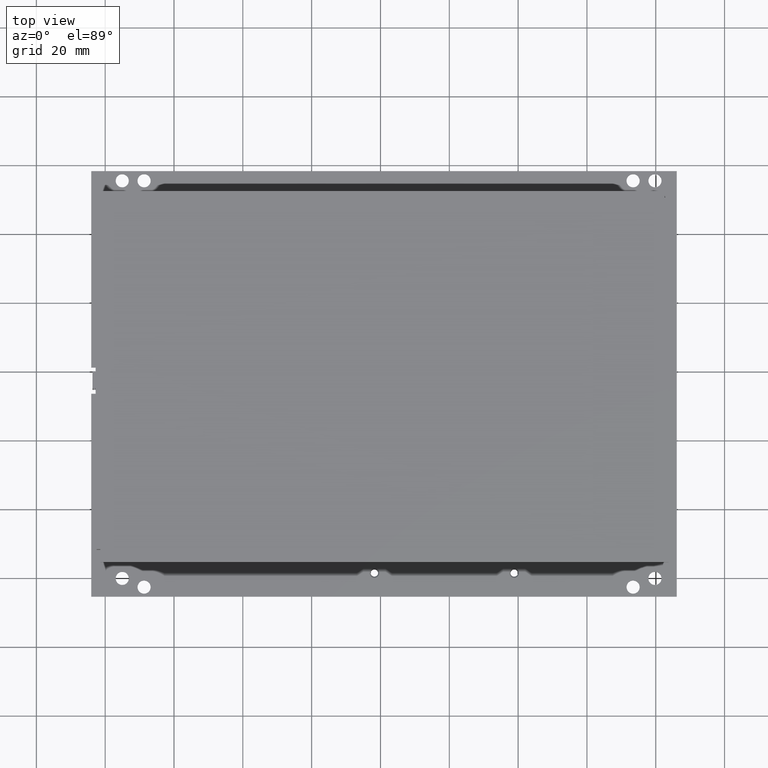
[diagram: clean part render]
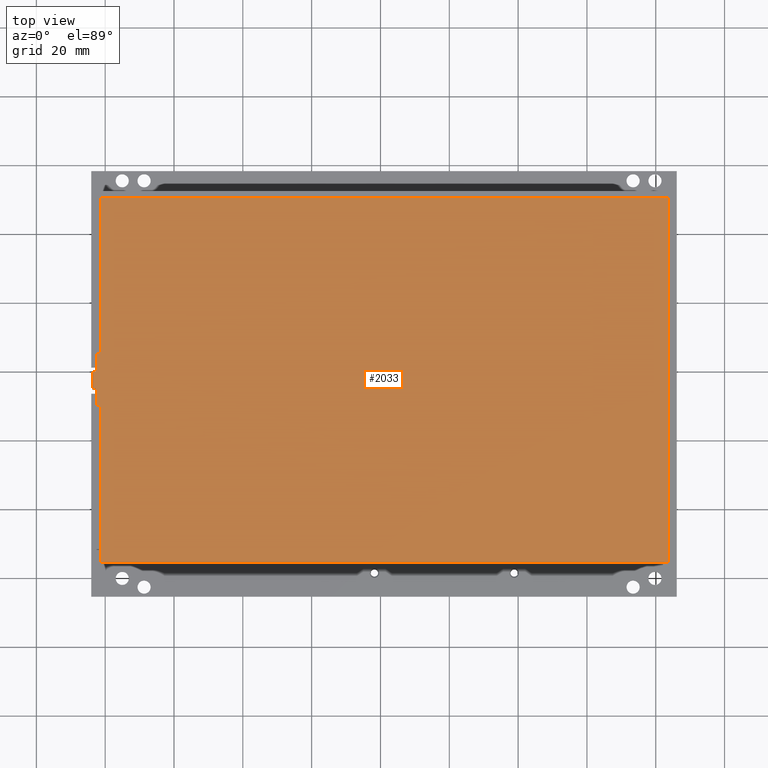
[diagram: same view with one face highlighted and labeled with its STEP entity id]
A machine part, top view. The second image highlights one B-rep face of the part: STEP entity #2033.
In plain terms, the highlighted planar face has unit normal (-0, 0, -1).
Its self-contained STEP definition (entity closure, byte-faithful):
#664 = EDGE_CURVE ( 'NONE', #15872, #15873, #6151, .T. ) ;
#673 = EDGE_CURVE ( 'NONE', #15873, #15880, #6163, .T. ) ;
#679 = EDGE_CURVE ( 'NONE', #15880, #15883, #6172, .T. ) ;
#685 = EDGE_CURVE ( 'NONE', #15886, #15888, #6156, .T. ) ;
#692 = EDGE_CURVE ( 'NONE', #15888, #15872, #19306, .T. ) ;
#695 = EDGE_CURVE ( 'NONE', #15886, #15884, #19312, .T. ) ;
#698 = EDGE_CURVE ( 'NONE', #15884, #15891, #19295, .T. ) ;
#700 = EDGE_CURVE ( 'NONE', #15891, #15892, #19318, .T. ) ;
#702 = EDGE_CURVE ( 'NONE', #15892, #15893, #19321, .T. ) ;
#704 = EDGE_CURVE ( 'NONE', #15893, #15894, #19324, .T. ) ;
#706 = EDGE_CURVE ( 'NONE', #15894, #15895, #19327, .T. ) ;
#708 = EDGE_CURVE ( 'NONE', #15895, #15883, #19330, .T. ) ;
#1751 = ORIENTED_EDGE ( 'NONE', *, *, #664, .F. ) ;
#1752 = ORIENTED_EDGE ( 'NONE', *, *, #692, .F. ) ;
#1753 = ORIENTED_EDGE ( 'NONE', *, *, #685, .F. ) ;
#1754 = ORIENTED_EDGE ( 'NONE', *, *, #695, .T. ) ;
#1755 = ORIENTED_EDGE ( 'NONE', *, *, #698, .T. ) ;
#1756 = ORIENTED_EDGE ( 'NONE', *, *, #700, .T. ) ;
#1757 = ORIENTED_EDGE ( 'NONE', *, *, #702, .T. ) ;
#1758 = ORIENTED_EDGE ( 'NONE', *, *, #704, .T. ) ;
#1759 = ORIENTED_EDGE ( 'NONE', *, *, #706, .T. ) ;
#1760 = ORIENTED_EDGE ( 'NONE', *, *, #708, .T. ) ;
#1761 = ORIENTED_EDGE ( 'NONE', *, *, #679, .F. ) ;
#1762 = ORIENTED_EDGE ( 'NONE', *, *, #673, .F. ) ;
#2033 = ADVANCED_FACE ( 'NONE', ( #7466 ), #7459, .F. ) ;
#2796 = VECTOR ( 'NONE', #19329, 39.37007874015748100 ) ;
#2797 = VECTOR ( 'NONE', #19332, 39.37007874015748100 ) ;
#4193 = VECTOR ( 'NONE', #19290, 39.37007874015748100 ) ;
#4195 = VECTOR ( 'NONE', #19323, 39.37007874015748100 ) ;
#4541 = VECTOR ( 'NONE', #6154, 39.37007874015748100 ) ;
#4545 = VECTOR ( 'NONE', #6165, 39.37007874015748100 ) ;
#4600 = VECTOR ( 'NONE', #19299, 39.37007874015748100 ) ;
#6151 = LINE ( 'NONE', #6153, #4541 ) ;
#6153 = CARTESIAN_POINT ( 'NONE',  ( -3.248031496063006800, -1.775701195881771200E-015, -2.086614173228346300 ) ) ;
#6154 = DIRECTION ( 'NONE',  ( -5.412337245047652900E-016, 1.027264941827654800E-015, 1.000000000000000000 ) ) ;
#6156 = LINE ( 'NONE', #19298, #4600 ) ;
#6163 = LINE ( 'NONE', #6164, #4545 ) ;
#6164 = CARTESIAN_POINT ( 'NONE',  ( -3.248031496063006800, 1.775701195881771200E-015, 2.086614173228347200 ) ) ;
#6165 = DIRECTION ( 'NONE',  ( 1.000000000000000000, 9.018840485127730700E-017, -5.412337245047620400E-016 ) ) ;
#6172 = LINE ( 'NONE', #12924, #4193 ) ;
#6426 = AXIS2_PLACEMENT_3D ( 'NONE', #13170, #13172, #13173 ) ;
#7459 = PLANE ( 'NONE',  #6426 ) ;
#7466 = FACE_OUTER_BOUND ( 'NONE', #16529, .T. ) ;
#7480 = VECTOR ( 'NONE', #19308, 39.37007874015748100 ) ;
#7481 = VECTOR ( 'NONE', #19315, 39.37007874015748100 ) ;
#7482 = VECTOR ( 'NONE', #19320, 39.37007874015748100 ) ;
#7483 = VECTOR ( 'NONE', #19317, 39.37007874015748100 ) ;
#7485 = VECTOR ( 'NONE', #19326, 39.37007874015748100 ) ;
#10121 = CARTESIAN_POINT ( 'NONE',  ( -3.248031496063006800, -1.775701195881771200E-015, -2.086614173228346300 ) ) ;
#10122 = CARTESIAN_POINT ( 'NONE',  ( -3.248031496063006800, 1.775701195881771200E-015, 2.086614173228347200 ) ) ;
#10129 = CARTESIAN_POINT ( 'NONE',  ( 3.248031496063006800, 1.775701195881771200E-015, 2.086614173228347200 ) ) ;
#10132 = CARTESIAN_POINT ( 'NONE',  ( 3.248031496063006800, 0.0000000000000000000, 0.2952755905511798600 ) ) ;
#10133 = CARTESIAN_POINT ( 'NONE',  ( 3.287401574803164200, 0.0000000000000000000, -0.2952755905511823500 ) ) ;
#10135 = CARTESIAN_POINT ( 'NONE',  ( 3.248031496063006800, 0.0000000000000000000, -0.2952755905511823500 ) ) ;
#10137 = CARTESIAN_POINT ( 'NONE',  ( 3.248031496063006800, -1.775701195881771200E-015, -2.086614173228346300 ) ) ;
#10140 = CARTESIAN_POINT ( 'NONE',  ( 3.287401574803164200, 0.0000000000000000000, -0.09842519685039548300 ) ) ;
#10141 = CARTESIAN_POINT ( 'NONE',  ( 3.338582677165368800, 0.0000000000000000000, -0.09842519685039548300 ) ) ;
#10142 = CARTESIAN_POINT ( 'NONE',  ( 3.338582677165368800, 0.0000000000000000000, 0.09842519685039193000 ) ) ;
#10143 = CARTESIAN_POINT ( 'NONE',  ( 3.287401574803164200, 0.0000000000000000000, 0.09842519685039193000 ) ) ;
#10144 = CARTESIAN_POINT ( 'NONE',  ( 3.287401574803164200, 0.0000000000000000000, 0.2952755905511788000 ) ) ;
#12924 = CARTESIAN_POINT ( 'NONE',  ( 3.248031496063006800, -1.775701195881771200E-015, -2.086614173228346300 ) ) ;
#13170 = CARTESIAN_POINT ( 'NONE',  ( -3.248031496063006800, 1.775701195881771200E-015, 2.086614173228347200 ) ) ;
#13172 = DIRECTION ( 'NONE',  ( 9.018840485127887200E-017, 1.000000000000000000, -1.027264941827654800E-015 ) ) ;
#13173 = DIRECTION ( 'NONE',  ( -5.412337245047652900E-016, 1.027264941827654800E-015, 1.000000000000000000 ) ) ;
#15872 = VERTEX_POINT ( 'NONE', #10121 ) ;
#15873 = VERTEX_POINT ( 'NONE', #10122 ) ;
#15880 = VERTEX_POINT ( 'NONE', #10129 ) ;
#15883 = VERTEX_POINT ( 'NONE', #10132 ) ;
#15884 = VERTEX_POINT ( 'NONE', #10133 ) ;
#15886 = VERTEX_POINT ( 'NONE', #10135 ) ;
#15888 = VERTEX_POINT ( 'NONE', #10137 ) ;
#15891 = VERTEX_POINT ( 'NONE', #10140 ) ;
#15892 = VERTEX_POINT ( 'NONE', #10141 ) ;
#15893 = VERTEX_POINT ( 'NONE', #10142 ) ;
#15894 = VERTEX_POINT ( 'NONE', #10143 ) ;
#15895 = VERTEX_POINT ( 'NONE', #10144 ) ;
#16529 = EDGE_LOOP ( 'NONE', ( #1751, #1752, #1753, #1754, #1755, #1756, #1757, #1758, #1759, #1760, #1761, #1762 ) ) ;
#19290 = DIRECTION ( 'NONE',  ( 5.412337245047652900E-016, -1.027264941827654800E-015, -1.000000000000000000 ) ) ;
#19295 = LINE ( 'NONE', #19316, #7483 ) ;
#19298 = CARTESIAN_POINT ( 'NONE',  ( 3.248031496063006800, -1.775701195881771200E-015, -2.086614173228346300 ) ) ;
#19299 = DIRECTION ( 'NONE',  ( 5.412337245047652900E-016, -1.027264941827654800E-015, -1.000000000000000000 ) ) ;
#19306 = LINE ( 'NONE', #19307, #7480 ) ;
#19307 = CARTESIAN_POINT ( 'NONE',  ( -3.248031496063006800, -1.775701195881771200E-015, -2.086614173228346300 ) ) ;
#19308 = DIRECTION ( 'NONE',  ( -1.000000000000000000, -9.018840485127730700E-017, 5.412337245047620400E-016 ) ) ;
#19312 = LINE ( 'NONE', #19314, #7481 ) ;
#19314 = CARTESIAN_POINT ( 'NONE',  ( 3.248031496063006800, 0.0000000000000000000, -0.2952755905511823500 ) ) ;
#19315 = DIRECTION ( 'NONE',  ( 1.000000000000000000, 9.018840485127730700E-017, -5.412337245047620400E-016 ) ) ;
#19316 = CARTESIAN_POINT ( 'NONE',  ( 3.287401574803164200, 0.0000000000000000000, -0.09842519685039548300 ) ) ;
#19317 = DIRECTION ( 'NONE',  ( -5.412337245047652900E-016, 1.027264941827654800E-015, 1.000000000000000000 ) ) ;
#19318 = LINE ( 'NONE', #19319, #7482 ) ;
#19319 = CARTESIAN_POINT ( 'NONE',  ( 3.287401574803164200, 0.0000000000000000000, -0.09842519685039548300 ) ) ;
#19320 = DIRECTION ( 'NONE',  ( 1.000000000000000000, 9.018840485127730700E-017, -5.412337245047620400E-016 ) ) ;
#19321 = LINE ( 'NONE', #19322, #4195 ) ;
#19322 = CARTESIAN_POINT ( 'NONE',  ( 3.338582677165368800, 0.0000000000000000000, -0.09842519685039548300 ) ) ;
#19323 = DIRECTION ( 'NONE',  ( -5.412337245047652900E-016, 1.027264941827654800E-015, 1.000000000000000000 ) ) ;
#19324 = LINE ( 'NONE', #19325, #7485 ) ;
#19325 = CARTESIAN_POINT ( 'NONE',  ( 3.287401574803164200, 0.0000000000000000000, 0.09842519685039193000 ) ) ;
#19326 = DIRECTION ( 'NONE',  ( -1.000000000000000000, -9.018840485127730700E-017, 5.412337245047620400E-016 ) ) ;
#19327 = LINE ( 'NONE', #19328, #2796 ) ;
#19328 = CARTESIAN_POINT ( 'NONE',  ( 3.287401574803164200, 0.0000000000000000000, 0.2952755905511788000 ) ) ;
#19329 = DIRECTION ( 'NONE',  ( -5.412337245047652900E-016, 1.027264941827654800E-015, 1.000000000000000000 ) ) ;
#19330 = LINE ( 'NONE', #19331, #2797 ) ;
#19331 = CARTESIAN_POINT ( 'NONE',  ( 3.248031496063006800, 0.0000000000000000000, 0.2952755905511798600 ) ) ;
#19332 = DIRECTION ( 'NONE',  ( -1.000000000000000000, -9.018840485124883400E-017, 2.829680934013348500E-014 ) ) ;